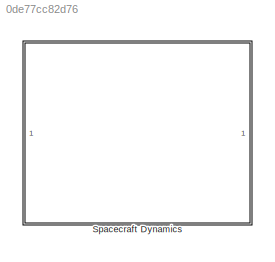
MODEL slx_0de77cc82d76
KIND model
CONFIG AbsTol = auto
CONFIG EnableMultiTasking = off
CONFIG FixedStep = auto
CONFIG MaxStep = auto
CONFIG MinStep = auto
CONFIG RelTol = 1e-3
CONFIG SampleTimeConstraint = Unconstrained
CONFIG SolverName = VariableStepAuto
CONFIG StartTime = 0.0
CONFIG StopTime = 10.0
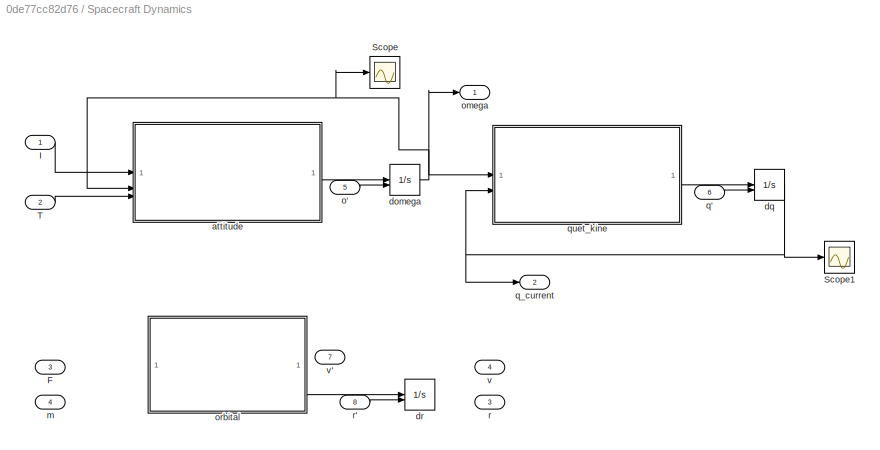
BLOCK [SubSystem] Spacecraft Dynamics
BLOCK [Inport] Spacecraft Dynamics/F
  Port = 3
BLOCK [Inport] Spacecraft Dynamics/I
BLOCK [Scope] Spacecraft Dynamics/Scope
  Floating = off
  NumInputPorts = 1
  ScopeSpecificationString = Simulink.scopes.TimeScopeBlockCfg('CurrentConfiguration', extmgr.ConfigurationSet(extmgr.Configuration('Core','General UI',true),extmgr.Configuration('Core','Source UI',true),extmgr.Configuration('Sources','WiredSimulink',true,'DataLoggingVariableName','ScopeData3'),extmgr.Configuration('Visuals','Time Domain',true,'SerializedDisplays',{struct('MinYLimReal','-1.49225','MaxYLimReal','1.78985','YLab...<+1475ch>
BLOCK [Scope] Spacecraft Dynamics/Scope1
  Floating = off
  NumInputPorts = 1
  ScopeSpecificationString = Simulink.scopes.TimeScopeBlockCfg('CurrentConfiguration', extmgr.ConfigurationSet(extmgr.Configuration('Core','General UI',true),extmgr.Configuration('Core','Source UI',true),extmgr.Configuration('Sources','WiredSimulink',true,'DataLoggingVariableName','ScopeData4'),extmgr.Configuration('Visuals','Time Domain',true,'SerializedDisplays',{struct('MinYLimReal','-0.91019','MaxYLimReal','1.2112','YLabe...<+1466ch>
BLOCK [Inport] Spacecraft Dynamics/T
  Port = 2
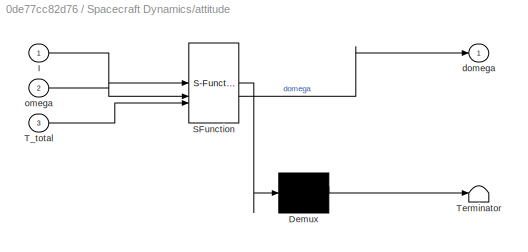
BLOCK [SubSystem] Spacecraft Dynamics/attitude
  ErrorFcn = Stateflow.Translate.translate
  PermitHierarchicalResolution = ExplicitOnly
  SFBlockType = MATLAB Function
  TreatAsAtomicUnit = on
BLOCK [Demux] Spacecraft Dynamics/attitude/ Demux 
  Outputs = 1
BLOCK [S-Function] Spacecraft Dynamics/attitude/ SFunction 
  EnableBusSupport = on
  FunctionName = sf_sfun
  PortCounts = [3 2]
  SFcnIsStateOwnerBlock = off
  SFunctionDeploymentMode = off
  Tag = Stateflow S-Function 1
BLOCK [Terminator] Spacecraft Dynamics/attitude/ Terminator 
BLOCK [Inport] Spacecraft Dynamics/attitude/I
BLOCK [Inport] Spacecraft Dynamics/attitude/T_total
  Port = 3
BLOCK [Outport] Spacecraft Dynamics/attitude/domega
BLOCK [Inport] Spacecraft Dynamics/attitude/omega
  Port = 2
BLOCK [Integrator] Spacecraft Dynamics/domega
  InitialConditionSource = external
BLOCK [Integrator] Spacecraft Dynamics/dq
  InitialConditionSource = external
BLOCK [Integrator] Spacecraft Dynamics/dr
  InitialConditionSource = external
BLOCK [Inport] Spacecraft Dynamics/m
  Port = 4
BLOCK [Inport] Spacecraft Dynamics/o'
  Port = 5
BLOCK [Outport] Spacecraft Dynamics/omega
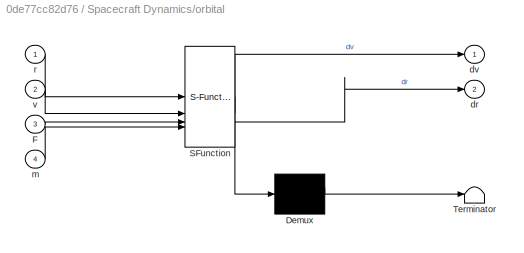
BLOCK [SubSystem] Spacecraft Dynamics/orbital
  ErrorFcn = Stateflow.Translate.translate
  PermitHierarchicalResolution = ExplicitOnly
  SFBlockType = MATLAB Function
  TreatAsAtomicUnit = on
BLOCK [Demux] Spacecraft Dynamics/orbital/ Demux 
  Outputs = 1
BLOCK [S-Function] Spacecraft Dynamics/orbital/ SFunction 
  EnableBusSupport = on
  FunctionName = sf_sfun
  PortCounts = [4 3]
  SFcnIsStateOwnerBlock = off
  SFunctionDeploymentMode = off
  Tag = Stateflow S-Function 4
BLOCK [Terminator] Spacecraft Dynamics/orbital/ Terminator 
BLOCK [Inport] Spacecraft Dynamics/orbital/F
  Port = 3
BLOCK [Outport] Spacecraft Dynamics/orbital/dr
  Port = 2
BLOCK [Outport] Spacecraft Dynamics/orbital/dv
BLOCK [Inport] Spacecraft Dynamics/orbital/m
  Port = 4
BLOCK [Inport] Spacecraft Dynamics/orbital/r
BLOCK [Inport] Spacecraft Dynamics/orbital/v
  Port = 2
BLOCK [Inport] Spacecraft Dynamics/q'
  Port = 6
BLOCK [Outport] Spacecraft Dynamics/q_current
  Port = 2
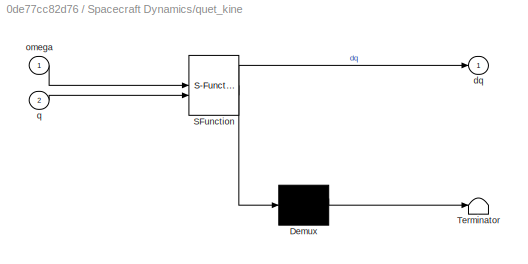
BLOCK [SubSystem] Spacecraft Dynamics/quet_kine
  ErrorFcn = Stateflow.Translate.translate
  PermitHierarchicalResolution = ExplicitOnly
  SFBlockType = MATLAB Function
  TreatAsAtomicUnit = on
BLOCK [Demux] Spacecraft Dynamics/quet_kine/ Demux 
  Outputs = 1
BLOCK [S-Function] Spacecraft Dynamics/quet_kine/ SFunction 
  EnableBusSupport = on
  FunctionName = sf_sfun
  PortCounts = [2 2]
  SFcnIsStateOwnerBlock = off
  SFunctionDeploymentMode = off
  Tag = Stateflow S-Function 3
BLOCK [Terminator] Spacecraft Dynamics/quet_kine/ Terminator 
BLOCK [Outport] Spacecraft Dynamics/quet_kine/dq
BLOCK [Inport] Spacecraft Dynamics/quet_kine/omega
BLOCK [Inport] Spacecraft Dynamics/quet_kine/q
  Port = 2
BLOCK [Outport] Spacecraft Dynamics/r
  Port = 3
BLOCK [Inport] Spacecraft Dynamics/r'
  Port = 8
BLOCK [Outport] Spacecraft Dynamics/v
  Port = 4
BLOCK [Inport] Spacecraft Dynamics/v'
  Port = 7
LINE Spacecraft Dynamics/I:1 -> Spacecraft Dynamics/attitude:1
LINE Spacecraft Dynamics/T:1 -> Spacecraft Dynamics/attitude:3
LINE Spacecraft Dynamics/attitude:1 -> Spacecraft Dynamics/domega:1
NET Spacecraft Dynamics/domega:1 -> Spacecraft Dynamics/Scope:1, Spacecraft Dynamics/attitude:2, Spacecraft Dynamics/omega:1, Spacecraft Dynamics/quet_kine:1
NET Spacecraft Dynamics/dq:1 -> Spacecraft Dynamics/Scope1:1, Spacecraft Dynamics/q_current:1, Spacecraft Dynamics/quet_kine:2
LINE Spacecraft Dynamics/o':1 -> Spacecraft Dynamics/domega:2
LINE Spacecraft Dynamics/orbital:2 -> Spacecraft Dynamics/dr:1
LINE Spacecraft Dynamics/q':1 -> Spacecraft Dynamics/dq:2
LINE Spacecraft Dynamics/quet_kine:1 -> Spacecraft Dynamics/dq:1
LINE Spacecraft Dynamics/r':1 -> Spacecraft Dynamics/dr:2
note: NET lines group one-source signal fan-out (src -> all destinations, sorted); 1:1 wires keep LINE
CHART Spacecraft Dynamics/attitude states=1 transitions=1
  STATE_LABEL 'eML_blk_kernel()'
  STATE_LABEL 'SCRIPT:\nfunction domega = angular_dynamics(I, omega, T_total)\n% Safety checks\nif any(isnan(omega)) || any(isinf(omega))\n    omega = [0;0;0];\nend\nif any(isnan(T_total)) || any(isinf(T_total))\n    T_total = [0;0;0];\nend\n\nomega_cross = [  0        -omega(3)  omega(2);\n              omega(3)     0       -omega(1);\n             -omega(2)  omega(1)     0    ];\n\n% Prevent singular matrix issues\nif det(I)...<+118ch>'
CHART Spacecraft Dynamics/quet_kine states=1 transitions=1
  STATE_LABEL 'eML_blk_kernel()'
  STATE_LABEL 'SCRIPT:\nfunction dq = quaternion_kinematics(omega, q)\n% omega: angular velocity [3x1]\n% q: current quaternion [4x1]\n\nOmega = [0       -omega(1) -omega(2) -omega(3);\n         omega(1)  0        omega(3) -omega(2);\n         omega(2) -omega(3) 0         omega(1);\n         omega(3) omega(2) -omega(1)  0];\n\ndq = 0.5 * Omega * q;\nend\n'
CHART Spacecraft Dynamics/orbital states=1 transitions=1
  STATE_LABEL 'eML_blk_kernel()'
  STATE_LABEL "SCRIPT:\nfunction [dv, dr] = orbital_dynamics(r, v, F, m)\n% r: position vector [3x1]\n% v: velocity vector [3x1]\n% F: total force applied [3x1]\n% m: spacecraft mass (scalar)\n\nmu = 398600.4418;  % Earth's gravitational parameter, km^3/s^2\n\n% Two-body gravity + applied force\nr_norm = norm(r);\na_gravity = -mu * r / r_norm^3;\na_applied = F / m;\n\ndv = a_gravity + a_applied;\ndr = v;\nend\n"
CHART  states=0 transitions=0
CHART  states=0 transitions=0
CHART  states=0 transitions=0
